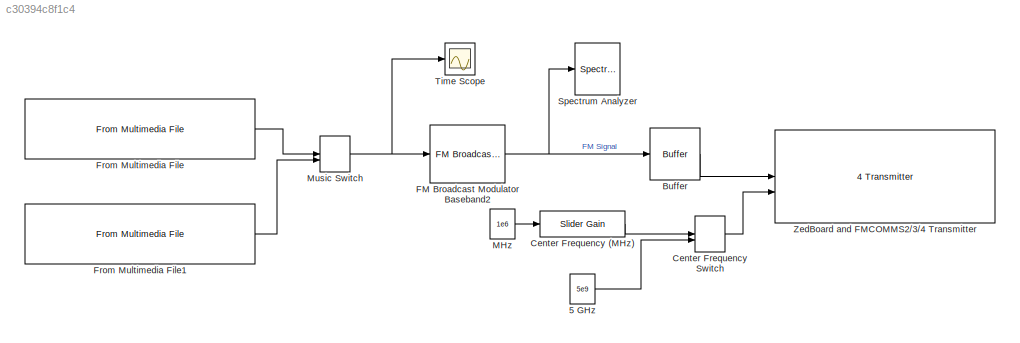
MODEL slx_c30394c8f1c4
KIND model
CONFIG AbsTol = auto
CONFIG EnableMultiTasking = off
CONFIG FixedStep = auto
CONFIG MaxStep = auto
CONFIG MinStep = auto
CONFIG RelTol = 1e-3
CONFIG SampleTimeConstraint = Unconstrained
CONFIG SolverName = VariableStepAuto
CONFIG StartTime = 0.0
CONFIG StopTime = 10.0
BLOCK [Constant] 5 GHz
  FramePeriod = -1
  SampleTime = 192000/960000
  Value = 5e9
  VectorParams1D = off
BLOCK [Buffer] Buffer
  N = 192000
  OutputFrames = off
BLOCK [Reference] Center Frequency (MHz)  REF=simulink/Math
Operations/Slider
Gain
  SourceBlock = simulink/Math\nOperations/Slider\nGain
  SourceType = Slider Gain
BLOCK [ManualSwitch] Center Frequency Switch
BLOCK [Reference] FM Broadcast Modulator Baseband2  REF=commanabbnd3/FM Broadcast
Modulator
Baseband
  SourceBlock = commanabbnd3/FM Broadcast\nModulator\nBaseband
  SourceType = FM Broadcast Modulator Baseband
BLOCK [Reference] From Multimedia File  REF=dspvision/From Multimedia File
  SourceBlock = dspvision/From Multimedia File
  SourceType = From Multimedia File
BLOCK [Reference] From Multimedia File1  REF=dspvision/From Multimedia File
  SourceBlock = dspvision/From Multimedia File
  SourceType = From Multimedia File
BLOCK [Constant] MHz
  FramePeriod = -1
  SampleTime = 192000/960000
  Value = 1e6
  VectorParams1D = off
BLOCK [ManualSwitch] Music Switch
BLOCK [SpectrumAnalyzer] Spectrum Analyzer
  AveragingMethod = Running
  DefaultConfigurationName = spbscopes.SpectrumAnalyzerBlockCfg
  GraphicalSettings = {"GraphicalSettings":{"Style":{"AxesColor":"[0 0 0]","DisplayName":"","LabelsColor":"[0.686274509803922 0.686274509803922 0.686274509803922]","LineStyle":"-","LineWidth":"0.5","Marker":"none","MarkerEdgeColor":"auto","MarkerFaceColor":"none","MarkerSize":"6","Version":"2017b","Visible":"on"}}}
  Method = Welch
  SampleRate = 960000
  ScopeFrameLocation = window
  ScopeSpecificationString = spbscopes.SpectrumAnalyzerBlockCfg('CurrentConfiguration', extmgr.ConfigurationSet(extmgr.Configuration('Core','General UI',true),extmgr.Configuration('Core','Source UI',true),extmgr.Configuration('Sources','WiredSimulink',true),extmgr.Configuration('Sources','SPTool',false),extmgr.Configuration('Sources','Simulink',false),extmgr.Configuration('Sources','File',false),extmgr.Configuration('Sources'...<+2665ch>
  ShowLegend = on
  Span = 27930
  StartFrequency = -13965
  StopFrequency = 13965
  ViewType = Spectrum and spectrogram
  WasSavedAsWebScope = on
  WindowPosition = [1212 180 483 666]
  YLimits = [-159.00256673081184999,35.803452450867595758]
BLOCK [Scope] Time Scope
  DefaultConfigurationName = spbscopes.TimeScopeBlockCfg
  Floating = off
  NumInputPorts = 1
  ScopeSpecificationString = spbscopes.TimeScopeBlockCfg('CurrentConfiguration', extmgr.ConfigurationSet(extmgr.Configuration('Core','General UI',true,'FigureColor',[0.156862745098039 0.156862745098039 0.156862745098039]),extmgr.Configuration('Core','Source UI',true),extmgr.Configuration('Sources','WiredSimulink',true),extmgr.Configuration('Visuals','Time Domain',true,'DisplayPropertyDefaults',struct('MinYLimReal','-1.24996',...<+1425ch>
  UserDataPersistent = on
BLOCK [Reference] ZedBoard and FMCOMMS2//3//4 Transmitter  REF=zedboardfmc234_lib/ZedBoard and 
FMCOMMS2//3//4 
Transmitter
  SourceBlock = zedboardfmc234_lib/ZedBoard and \nFMCOMMS2//3//4 \nTransmitter
  SourceType = comm.internal.SDRTxZedBoardFMC234SL
LINE 5 GHz:1 -> Center Frequency Switch:2
LINE Buffer:1 -> ZedBoard and FMCOMMS2//3//4 Transmitter:1
LINE Center Frequency (MHz):1 -> Center Frequency Switch:1
LINE Center Frequency Switch:1 -> ZedBoard and FMCOMMS2//3//4 Transmitter:2
NET FM Broadcast Modulator Baseband2:1 -> Buffer:1, Spectrum Analyzer:1
LINE From Multimedia File1:1 -> Music Switch:2
LINE From Multimedia File:1 -> Music Switch:1
LINE MHz:1 -> Center Frequency (MHz):1
NET Music Switch:1 -> FM Broadcast Modulator Baseband2:1, Time Scope:1
note: NET lines group one-source signal fan-out (src -> all destinations, sorted); 1:1 wires keep LINE
